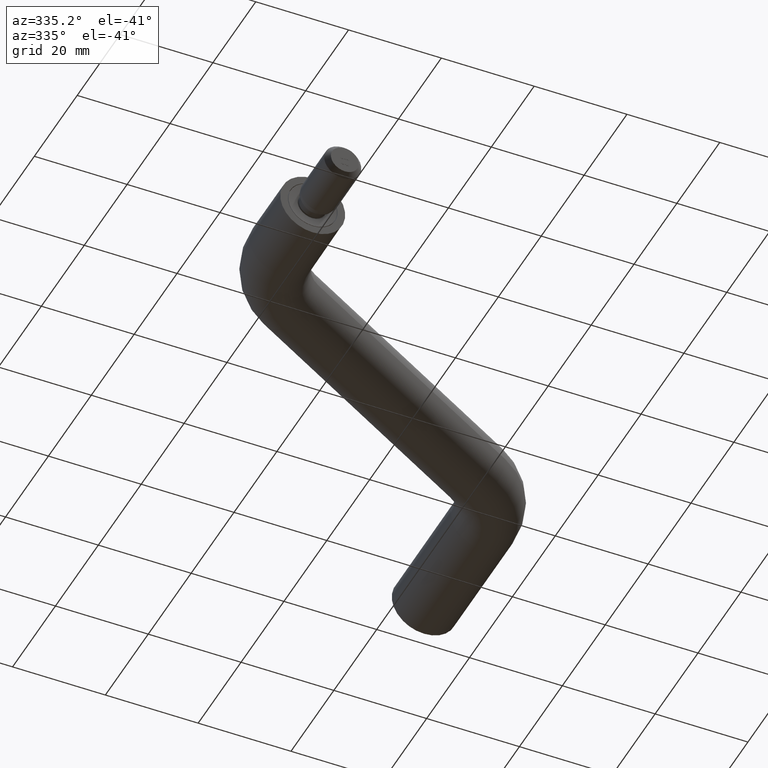
[diagram: clean part render]
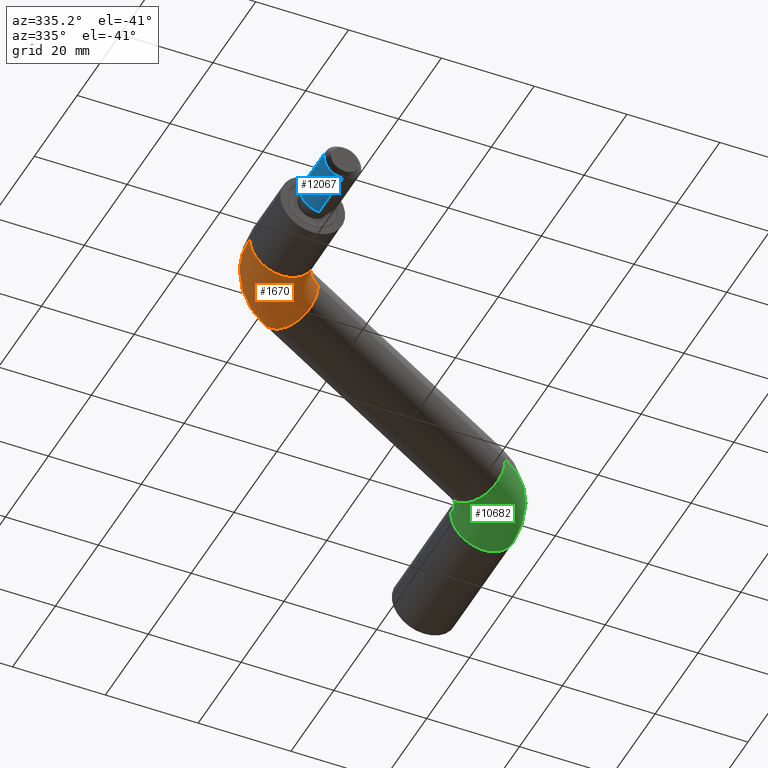
[diagram: same view with three faces highlighted in distinct colors, each labeled with its STEP entity id]
A machine part, auxiliary view with three faces highlighted in distinct colors.
Their STEP definitions:

[orange] entity #1670 — the highlighted toroidal blend (fillet) surface has major radius 15 mm and minor (blend) radius 7 mm.
#198 = AXIS2_PLACEMENT_3D ( 'NONE', #3371, #12192, #4540 ) ;
#200 = DIRECTION ( 'NONE',  ( -1.000000000000000000, 0.0000000000000000000, 0.0000000000000000000 ) ) ;
#887 = EDGE_CURVE ( 'NONE', #11349, #2253, #3294, .T. ) ;
#1102 = VERTEX_POINT ( 'NONE', #2758 ) ;
#1484 = EDGE_CURVE ( 'NONE', #2253, #1102, #2572, .T. ) ;
#1670 = ADVANCED_FACE ( 'NONE', ( #5887 ), #9718, .T. ) ;
#1876 = DIRECTION ( 'NONE',  ( -0.0000000000000000000, -0.0000000000000000000, -1.000000000000000000 ) ) ;
#2253 = VERTEX_POINT ( 'NONE', #9450 ) ;
#2369 = EDGE_LOOP ( 'NONE', ( #6523, #9184, #6878, #9582, #2787 ) ) ;
#2494 = CARTESIAN_POINT ( 'NONE',  ( 15.00000000000000000, 14.26497308103759900, 0.0000000000000000000 ) ) ;
#2534 = DIRECTION ( 'NONE',  ( -1.000000000000000000, 0.0000000000000000000, 0.0000000000000000000 ) ) ;
#2572 = CIRCLE ( 'NONE', #2781, 7.000000000000000000 ) ;
#2744 = CARTESIAN_POINT ( 'NONE',  ( 7.500000000000030200, 27.25535413780419300, 0.0000000000000000000 ) ) ;
#2758 = CARTESIAN_POINT ( 'NONE',  ( 4.000000000000043500, 33.31753196429527000, 0.0000000000000000000 ) ) ;
#2781 = AXIS2_PLACEMENT_3D ( 'NONE', #2744, #6274, #7250 ) ;
#2787 = ORIENTED_EDGE ( 'NONE', *, *, #12860, .T. ) ;
#2950 = DIRECTION ( 'NONE',  ( 0.0000000000000000000, 0.0000000000000000000, 1.000000000000000000 ) ) ;
#3294 = CIRCLE ( 'NONE', #7590, 8.000000000000000000 ) ;
#3371 = CARTESIAN_POINT ( 'NONE',  ( 0.0000000000000000000, 14.26497308103759900, 0.0000000000000000000 ) ) ;
#3400 = AXIS2_PLACEMENT_3D ( 'NONE', #9548, #4141, #2950 ) ;
#4141 = DIRECTION ( 'NONE',  ( 0.0000000000000000000, 1.000000000000000000, 0.0000000000000000000 ) ) ;
#4540 = DIRECTION ( 'NONE',  ( 0.0000000000000000000, 0.0000000000000000000, 1.000000000000000000 ) ) ;
#4836 = CARTESIAN_POINT ( 'NONE',  ( 15.00000000000000000, 14.26497308103759900, 8.572527594031473200E-016 ) ) ;
#5348 = AXIS2_PLACEMENT_3D ( 'NONE', #2494, #11318, #200 ) ;
#5758 = CIRCLE ( 'NONE', #198, 7.000000000000000000 ) ;
#5887 = FACE_OUTER_BOUND ( 'NONE', #2369, .T. ) ;
#5913 = EDGE_CURVE ( 'NONE', #13416, #1102, #6172, .T. ) ;
#6085 = AXIS2_PLACEMENT_3D ( 'NONE', #14192, #1876, #9585 ) ;
#6172 = CIRCLE ( 'NONE', #6085, 22.00000000000000000 ) ;
#6274 = DIRECTION ( 'NONE',  ( 0.8660254037844398200, 0.4999999999999980000, 0.0000000000000000000 ) ) ;
#6523 = ORIENTED_EDGE ( 'NONE', *, *, #11599, .T. ) ;
#6878 = ORIENTED_EDGE ( 'NONE', *, *, #1484, .F. ) ;
#7250 = DIRECTION ( 'NONE',  ( 0.0000000000000000000, 0.0000000000000000000, 1.000000000000000000 ) ) ;
#7590 = AXIS2_PLACEMENT_3D ( 'NONE', #4836, #12629, #2534 ) ;
#8168 = CARTESIAN_POINT ( 'NONE',  ( 0.0000000000000000000, 14.26497308103759900, -7.000000000000000000 ) ) ;
#8769 = CARTESIAN_POINT ( 'NONE',  ( 7.000000000000000900, 14.26497308103759900, 8.572527594031474200E-016 ) ) ;
#9184 = ORIENTED_EDGE ( 'NONE', *, *, #5913, .T. ) ;
#9450 = CARTESIAN_POINT ( 'NONE',  ( 11.00000000000001600, 21.19317631131311700, 8.572527594031473200E-016 ) ) ;
#9548 = CARTESIAN_POINT ( 'NONE',  ( 0.0000000000000000000, 14.26497308103759900, 0.0000000000000000000 ) ) ;
#9582 = ORIENTED_EDGE ( 'NONE', *, *, #887, .F. ) ;
#9585 = DIRECTION ( 'NONE',  ( -1.000000000000000000, 0.0000000000000000000, 0.0000000000000000000 ) ) ;
#9718 = TOROIDAL_SURFACE ( 'NONE', #5348, 15.00000000000000000, 7.000000000000000000 ) ;
#11318 = DIRECTION ( 'NONE',  ( -0.0000000000000000000, -0.0000000000000000000, -1.000000000000000000 ) ) ;
#11349 = VERTEX_POINT ( 'NONE', #8769 ) ;
#11477 = CIRCLE ( 'NONE', #3400, 7.000000000000000000 ) ;
#11599 = EDGE_CURVE ( 'NONE', #13943, #13416, #5758, .T. ) ;
#12192 = DIRECTION ( 'NONE',  ( 0.0000000000000000000, 1.000000000000000000, 0.0000000000000000000 ) ) ;
#12331 = CARTESIAN_POINT ( 'NONE',  ( -6.999999999999999100, 14.26497308103759900, 0.0000000000000000000 ) ) ;
#12629 = DIRECTION ( 'NONE',  ( -0.0000000000000000000, -0.0000000000000000000, -1.000000000000000000 ) ) ;
#12860 = EDGE_CURVE ( 'NONE', #11349, #13943, #11477, .T. ) ;
#13416 = VERTEX_POINT ( 'NONE', #12331 ) ;
#13943 = VERTEX_POINT ( 'NONE', #8168 ) ;
#14192 = CARTESIAN_POINT ( 'NONE',  ( 15.00000000000000000, 14.26497308103759900, 0.0000000000000000000 ) ) ;

[blue] entity #12067 — the highlighted cylindrical surface (edge-blend (fillet) strip) has radius 4 mm, axis along (-0, -1, -0).
#570 = AXIS2_PLACEMENT_3D ( 'NONE', #4451, #5621, #11209 ) ;
#835 = DIRECTION ( 'NONE',  ( -0.0000000000000000000, -1.000000000000000000, -0.0000000000000000000 ) ) ;
#1127 = CARTESIAN_POINT ( 'NONE',  ( 0.0000000000000000000, -3.000000000000004400, -4.000000000000002700 ) ) ;
#1447 = CIRCLE ( 'NONE', #13809, 4.000000000000000000 ) ;
#1621 = VERTEX_POINT ( 'NONE', #1127 ) ;
#3038 = ORIENTED_EDGE ( 'NONE', *, *, #5169, .F. ) ;
#3074 = ORIENTED_EDGE ( 'NONE', *, *, #13318, .T. ) ;
#3577 = VERTEX_POINT ( 'NONE', #13968 ) ;
#3644 = CARTESIAN_POINT ( 'NONE',  ( 0.0000000000000000000, -13.99999999999999800, 4.000000000000000000 ) ) ;
#4233 = LINE ( 'NONE', #7926, #8949 ) ;
#4241 = AXIS2_PLACEMENT_3D ( 'NONE', #14132, #835, #14236 ) ;
#4451 = CARTESIAN_POINT ( 'NONE',  ( 0.0000000000000000000, -3.000000000000004400, 0.0000000000000000000 ) ) ;
#4457 = VERTEX_POINT ( 'NONE', #3644 ) ;
#5055 = CARTESIAN_POINT ( 'NONE',  ( 4.898587196589413800E-016, -13.99999999999999800, -4.000000000000000000 ) ) ;
#5169 = EDGE_CURVE ( 'NONE', #4457, #11972, #1447, .T. ) ;
#5621 = DIRECTION ( 'NONE',  ( -0.0000000000000000000, -1.000000000000000000, -0.0000000000000000000 ) ) ;
#5722 = DIRECTION ( 'NONE',  ( -0.0000000000000000000, -1.000000000000000000, -0.0000000000000000000 ) ) ;
#6447 = CIRCLE ( 'NONE', #570, 4.000000000000002700 ) ;
#6660 = ORIENTED_EDGE ( 'NONE', *, *, #12678, .F. ) ;
#6885 = CARTESIAN_POINT ( 'NONE',  ( 0.0000000000000000000, -13.99999999999999800, 0.0000000000000000000 ) ) ;
#7926 = CARTESIAN_POINT ( 'NONE',  ( 0.0000000000000000000, 0.0000000000000000000, -4.000000000000001800 ) ) ;
#8199 = CYLINDRICAL_SURFACE ( 'NONE', #4241, 4.000000000000001800 ) ;
#8842 = EDGE_LOOP ( 'NONE', ( #6660, #3074, #11840, #3038 ) ) ;
#8896 = VECTOR ( 'NONE', #5722, 1000.000000000000000 ) ;
#8949 = VECTOR ( 'NONE', #10199, 1000.000000000000000 ) ;
#9136 = EDGE_CURVE ( 'NONE', #1621, #11972, #4233, .T. ) ;
#10199 = DIRECTION ( 'NONE',  ( -0.0000000000000000000, -1.000000000000000000, -0.0000000000000000000 ) ) ;
#10286 = CARTESIAN_POINT ( 'NONE',  ( 4.898587196589415800E-016, 0.0000000000000000000, 4.000000000000001800 ) ) ;
#10304 = DIRECTION ( 'NONE',  ( -0.0000000000000000000, -1.000000000000000000, -0.0000000000000000000 ) ) ;
#11209 = DIRECTION ( 'NONE',  ( 0.0000000000000000000, 0.0000000000000000000, -1.000000000000000000 ) ) ;
#11821 = LINE ( 'NONE', #10286, #8896 ) ;
#11840 = ORIENTED_EDGE ( 'NONE', *, *, #9136, .T. ) ;
#11972 = VERTEX_POINT ( 'NONE', #5055 ) ;
#12067 = ADVANCED_FACE ( 'NONE', ( #12874 ), #8199, .T. ) ;
#12678 = EDGE_CURVE ( 'NONE', #3577, #4457, #11821, .T. ) ;
#12874 = FACE_OUTER_BOUND ( 'NONE', #8842, .T. ) ;
#13318 = EDGE_CURVE ( 'NONE', #3577, #1621, #6447, .T. ) ;
#13634 = DIRECTION ( 'NONE',  ( 0.0000000000000000000, 0.0000000000000000000, -1.000000000000000000 ) ) ;
#13809 = AXIS2_PLACEMENT_3D ( 'NONE', #6885, #10304, #13634 ) ;
#13968 = CARTESIAN_POINT ( 'NONE',  ( 4.898587196589416800E-016, -3.000000000000004400, 4.000000000000002700 ) ) ;
#14132 = CARTESIAN_POINT ( 'NONE',  ( 0.0000000000000000000, 0.0000000000000000000, 0.0000000000000000000 ) ) ;
#14236 = DIRECTION ( 'NONE',  ( 0.0000000000000000000, 0.0000000000000000000, -1.000000000000000000 ) ) ;

[green] entity #10682 — the highlighted toroidal blend (fillet) surface has major radius 15 mm and minor (blend) radius 7 mm.
#164 = EDGE_CURVE ( 'NONE', #10351, #1970, #7933, .T. ) ;
#949 = ORIENTED_EDGE ( 'NONE', *, *, #164, .T. ) ;
#1027 = DIRECTION ( 'NONE',  ( 0.0000000000000000000, 0.0000000000000000000, 1.000000000000000000 ) ) ;
#1495 = AXIS2_PLACEMENT_3D ( 'NONE', #6704, #2213, #1027 ) ;
#1970 = VERTEX_POINT ( 'NONE', #7696 ) ;
#2059 = EDGE_CURVE ( 'NONE', #7417, #4899, #3441, .T. ) ;
#2066 = CARTESIAN_POINT ( 'NONE',  ( 70.00000000000000000, 72.00000000000001400, 0.0000000000000000000 ) ) ;
#2213 = DIRECTION ( 'NONE',  ( -7.216449660063517500E-016, 1.000000000000000000, 0.0000000000000000000 ) ) ;
#2277 = CIRCLE ( 'NONE', #5269, 7.000000000000000000 ) ;
#2295 = DIRECTION ( 'NONE',  ( 0.0000000000000000000, 0.0000000000000000000, 1.000000000000000000 ) ) ;
#2580 = DIRECTION ( 'NONE',  ( 1.000000000000000000, 0.0000000000000000000, 0.0000000000000000000 ) ) ;
#3330 = CARTESIAN_POINT ( 'NONE',  ( 62.49999999999996400, 59.00961894323340600, 0.0000000000000000000 ) ) ;
#3441 = CIRCLE ( 'NONE', #7289, 22.00000000000000700 ) ;
#3450 = AXIS2_PLACEMENT_3D ( 'NONE', #14408, #5582, #11168 ) ;
#4191 = FACE_OUTER_BOUND ( 'NONE', #6485, .T. ) ;
#4249 = AXIS2_PLACEMENT_3D ( 'NONE', #3330, #12243, #2295 ) ;
#4476 = ORIENTED_EDGE ( 'NONE', *, *, #10490, .F. ) ;
#4899 = VERTEX_POINT ( 'NONE', #9580 ) ;
#5269 = AXIS2_PLACEMENT_3D ( 'NONE', #2066, #8722, #12205 ) ;
#5582 = DIRECTION ( 'NONE',  ( 0.0000000000000000000, 0.0000000000000000000, 1.000000000000000000 ) ) ;
#6485 = EDGE_LOOP ( 'NONE', ( #8995, #12661, #949, #9167, #4476 ) ) ;
#6704 = CARTESIAN_POINT ( 'NONE',  ( 70.00000000000000000, 72.00000000000001400, 0.0000000000000000000 ) ) ;
#7289 = AXIS2_PLACEMENT_3D ( 'NONE', #9924, #14224, #8608 ) ;
#7417 = VERTEX_POINT ( 'NONE', #7949 ) ;
#7696 = CARTESIAN_POINT ( 'NONE',  ( 63.00000000000000000, 72.00000000000001400, -8.572527594031465300E-016 ) ) ;
#7711 = EDGE_CURVE ( 'NONE', #7417, #10351, #10937, .T. ) ;
#7933 = CIRCLE ( 'NONE', #3450, 7.999999999999992900 ) ;
#7949 = CARTESIAN_POINT ( 'NONE',  ( 65.99999999999994300, 52.94744111674232600, 8.572527594031473200E-016 ) ) ;
#8568 = CARTESIAN_POINT ( 'NONE',  ( 58.99999999999998600, 65.07179676972450000, 0.0000000000000000000 ) ) ;
#8608 = DIRECTION ( 'NONE',  ( 1.000000000000000000, 0.0000000000000000000, 0.0000000000000000000 ) ) ;
#8722 = DIRECTION ( 'NONE',  ( -7.216449660063517500E-016, 1.000000000000000000, 0.0000000000000000000 ) ) ;
#8995 = ORIENTED_EDGE ( 'NONE', *, *, #2059, .F. ) ;
#9167 = ORIENTED_EDGE ( 'NONE', *, *, #11296, .F. ) ;
#9580 = CARTESIAN_POINT ( 'NONE',  ( 77.00000000000001400, 72.00000000000001400, 0.0000000000000000000 ) ) ;
#9924 = CARTESIAN_POINT ( 'NONE',  ( 55.00000000000000700, 72.00000000000001400, 0.0000000000000000000 ) ) ;
#10351 = VERTEX_POINT ( 'NONE', #8568 ) ;
#10490 = EDGE_CURVE ( 'NONE', #4899, #13945, #2277, .T. ) ;
#10682 = ADVANCED_FACE ( 'NONE', ( #4191 ), #13574, .T. ) ;
#10937 = CIRCLE ( 'NONE', #4249, 7.000000000000000000 ) ;
#10958 = AXIS2_PLACEMENT_3D ( 'NONE', #11503, #12535, #2580 ) ;
#11168 = DIRECTION ( 'NONE',  ( 1.000000000000000000, 0.0000000000000000000, 0.0000000000000000000 ) ) ;
#11296 = EDGE_CURVE ( 'NONE', #13945, #1970, #14271, .T. ) ;
#11503 = CARTESIAN_POINT ( 'NONE',  ( 55.00000000000000700, 72.00000000000001400, 0.0000000000000000000 ) ) ;
#12205 = DIRECTION ( 'NONE',  ( 0.0000000000000000000, 0.0000000000000000000, 1.000000000000000000 ) ) ;
#12243 = DIRECTION ( 'NONE',  ( 0.8660254037844398200, 0.4999999999999980000, 0.0000000000000000000 ) ) ;
#12488 = CARTESIAN_POINT ( 'NONE',  ( 70.00000000000000000, 72.00000000000001400, -7.000000000000000000 ) ) ;
#12535 = DIRECTION ( 'NONE',  ( 0.0000000000000000000, 0.0000000000000000000, 1.000000000000000000 ) ) ;
#12661 = ORIENTED_EDGE ( 'NONE', *, *, #7711, .T. ) ;
#13574 = TOROIDAL_SURFACE ( 'NONE', #10958, 14.99999999999999800, 7.000000000000000000 ) ;
#13945 = VERTEX_POINT ( 'NONE', #12488 ) ;
#14224 = DIRECTION ( 'NONE',  ( 0.0000000000000000000, 0.0000000000000000000, 1.000000000000000000 ) ) ;
#14271 = CIRCLE ( 'NONE', #1495, 7.000000000000000000 ) ;
#14408 = CARTESIAN_POINT ( 'NONE',  ( 55.00000000000000700, 72.00000000000001400, -8.572527594031473200E-016 ) ) ;